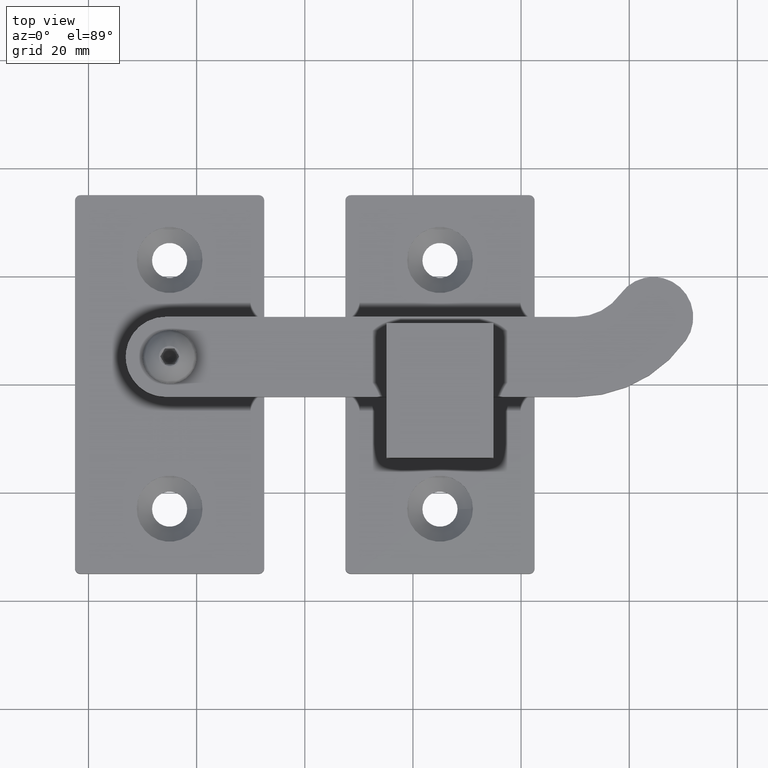
[diagram: clean part render]
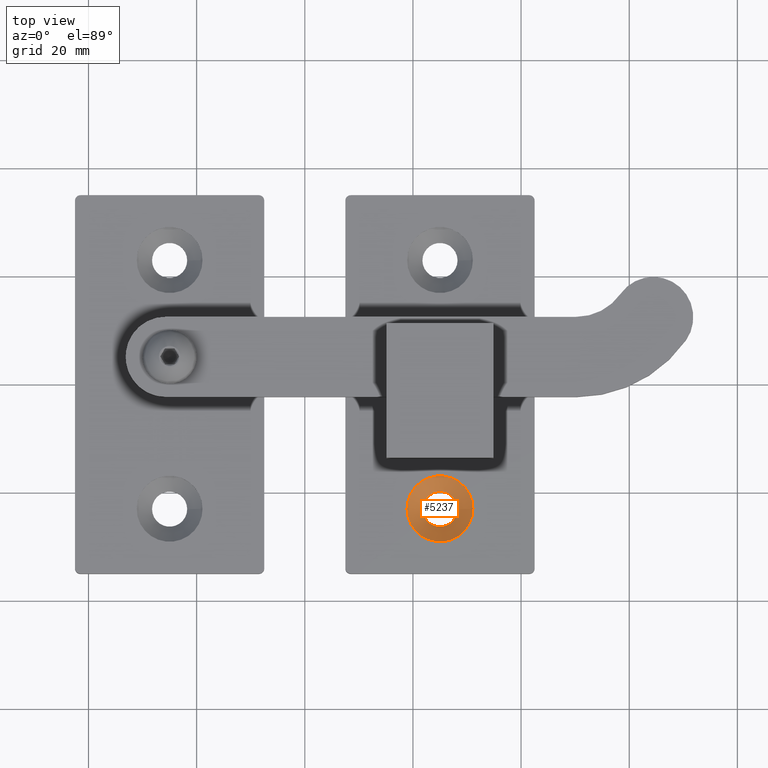
[diagram: same view with one face highlighted and labeled with its STEP entity id]
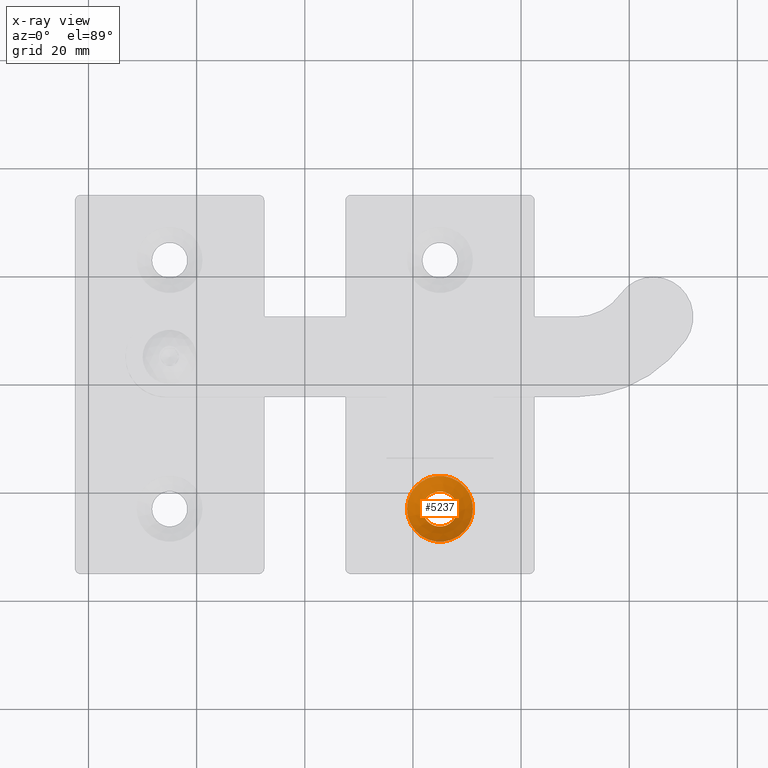
[diagram: x-ray of the same camera — body ghosted, the highlighted face saturated]
A machine part, top view. The second image highlights one B-rep face of the part: STEP entity #5237.
The next image is the same camera in x-ray: the body ghosted, the highlighted face saturated — about 0% of this face is hidden behind the body in this view.
In plain terms, the highlighted conical surface has half-angle 45 deg.
Its self-contained STEP definition (entity closure, byte-faithful):
#391 = VERTEX_POINT ( 'NONE', #12399 ) ;
#591 = DIRECTION ( 'NONE',  ( -0.000000000000000000, -0.000000000000000000, 1.000000000000000000 ) ) ;
#1144 = CIRCLE ( 'NONE', #12107, 6.099999999999997868 ) ;
#1237 = CARTESIAN_POINT ( 'NONE',  ( 0.000000000000000000, -23.00000000000000000, -1.349999999999992317 ) ) ;
#2194 = AXIS2_PLACEMENT_3D ( 'NONE', #1237, #11873, #16219 ) ;
#3756 = CARTESIAN_POINT ( 'NONE',  ( 0.000000000000000000, -23.00000000000000000, 1.500000000000002665 ) ) ;
#5217 = CARTESIAN_POINT ( 'NONE',  ( 3.250000000000011546, -23.00000000000000000, -1.349999999999992317 ) ) ;
#5237 = ADVANCED_FACE ( 'NONE', ( #17533, #13519 ), #6193, .F. ) ;
#6193 = CONICAL_SURFACE ( 'NONE', #14580, 6.099999999999997868, 0.7853981633974468357 ) ;
#6517 = ORIENTED_EDGE ( 'NONE', *, *, #8314, .F. ) ;
#8294 = DIRECTION ( 'NONE',  ( 1.000000000000000000, 0.000000000000000000, 0.000000000000000000 ) ) ;
#8314 = EDGE_CURVE ( 'NONE', #15523, #15523, #9145, .T. ) ;
#9145 = CIRCLE ( 'NONE', #2194, 3.250000000000011546 ) ;
#10658 = EDGE_LOOP ( 'NONE', ( #12365 ) ) ;
#11149 = DIRECTION ( 'NONE',  ( -0.000000000000000000, -0.000000000000000000, 1.000000000000000000 ) ) ;
#11873 = DIRECTION ( 'NONE',  ( -0.000000000000000000, -0.000000000000000000, 1.000000000000000000 ) ) ;
#12107 = AXIS2_PLACEMENT_3D ( 'NONE', #3756, #591, #12852 ) ;
#12365 = ORIENTED_EDGE ( 'NONE', *, *, #16836, .T. ) ;
#12399 = CARTESIAN_POINT ( 'NONE',  ( 6.099999999999997868, -23.00000000000000000, 1.500000000000002665 ) ) ;
#12852 = DIRECTION ( 'NONE',  ( 1.000000000000000000, 0.000000000000000000, 0.000000000000000000 ) ) ;
#13201 = EDGE_LOOP ( 'NONE', ( #6517 ) ) ;
#13519 = FACE_OUTER_BOUND ( 'NONE', #10658, .T. ) ;
#14580 = AXIS2_PLACEMENT_3D ( 'NONE', #18691, #11149, #8294 ) ;
#15523 = VERTEX_POINT ( 'NONE', #5217 ) ;
#16219 = DIRECTION ( 'NONE',  ( 1.000000000000000000, 0.000000000000000000, 0.000000000000000000 ) ) ;
#16836 = EDGE_CURVE ( 'NONE', #391, #391, #1144, .T. ) ;
#17533 = FACE_BOUND ( 'NONE', #13201, .T. ) ;
#18691 = CARTESIAN_POINT ( 'NONE',  ( 0.000000000000000000, -23.00000000000000000, 1.500000000000002665 ) ) ;